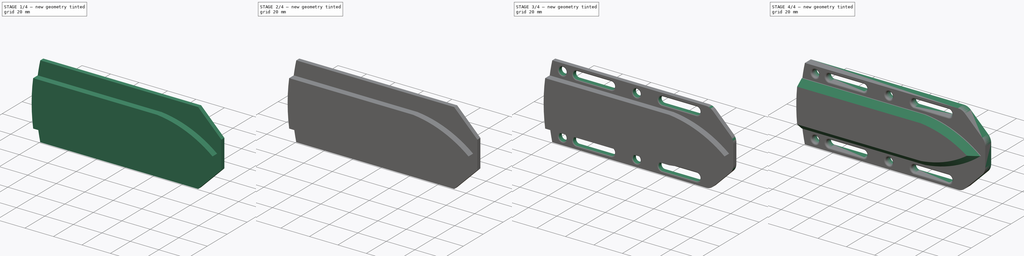
[diagram: build sequence overview — one tinted view per stage of 4, left to right]
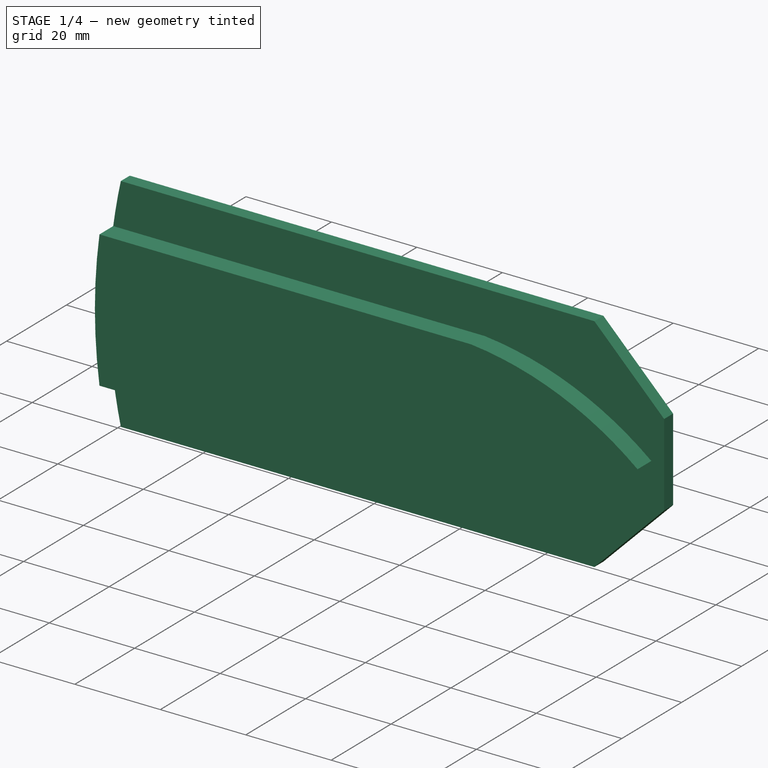
[diagram: stage 1 of 4 — iso view after this stage's code; geometry added in this stage tinted green]
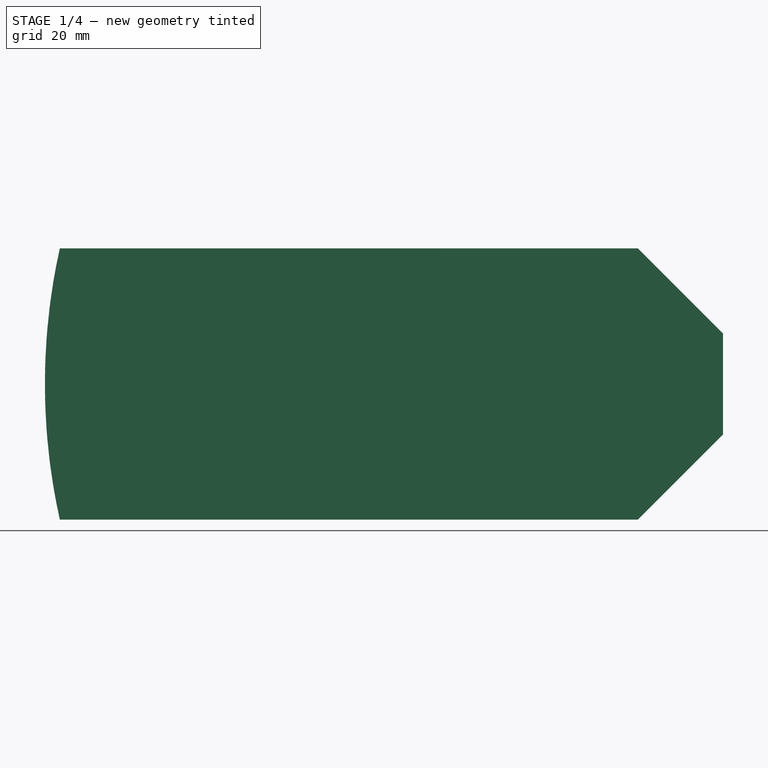
[diagram: stage 1 of 4 — front view after this stage's code; geometry added in this stage tinted green]
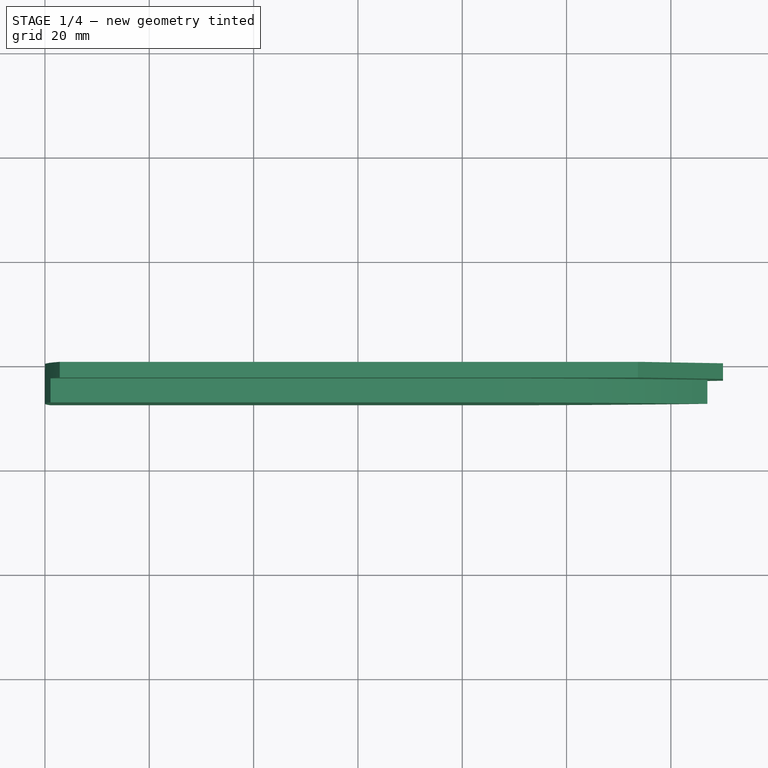
[diagram: stage 1 of 4 — top view after this stage's code; geometry added in this stage tinted green]
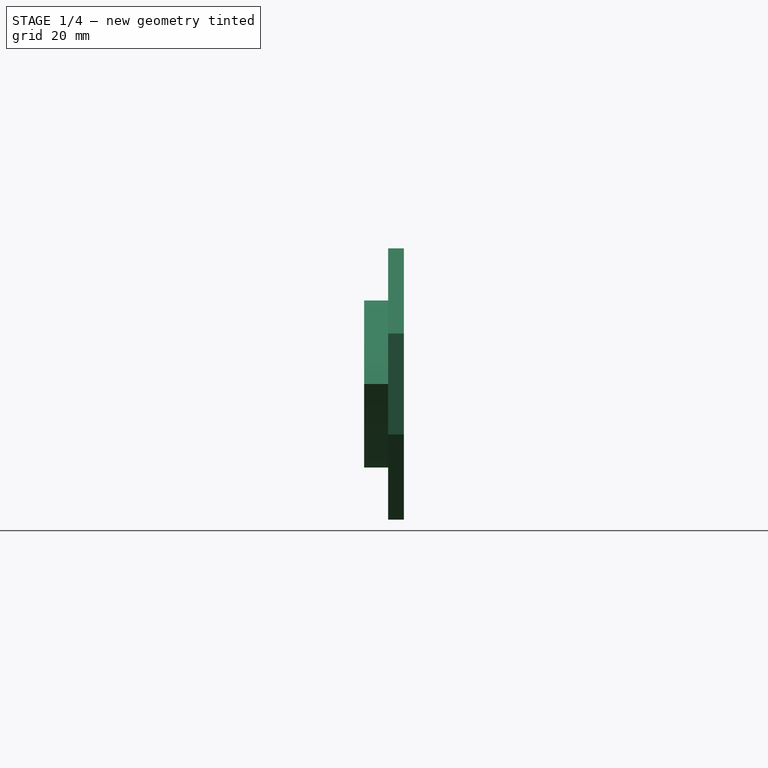
[diagram: stage 1 of 4 — right view after this stage's code; geometry added in this stage tinted green]
FCSTD DOCUMENT  (FreeCAD 1.0R39109 (Git))
Label: Рома морпех фаска2
License: All rights reserved
LicenseURL: https://en.wikipedia.org/wiki/All_rights_reserved
objects: Sketcher::SketchObject×5, PartDesign::Pocket×3, PartDesign::Pad×2, PartDesign::Fillet×2, PartDesign::Chamfer×1, PartDesign::Mirrored×1, PartDesign::Body×1
note: 37 computed .brp shape members not serialized (recipe doc carries the construction recipe); baked Part::Feature solids carry a one-line shape summary decoded from their .brp

FEATURE [Sketcher::SketchObject] Sketch
  ArcFitTolerance = 1e-06
  AttachmentSupport = -> [XZ_Plane]
  FullyConstrained = false
  MakeInternals = false
  MapMode = 5
  Placement = pos=(0,0,0) rot=(1,0,0;1.5708rad)
  sketch-geometry (6):
    g0: LineSegment StartX=2.85052 StartY=-26 StartZ=0 EndX=113.678 EndY=-26 EndZ=0
    g1: LineSegment StartX=130 StartY=-9.67799 StartZ=0 EndX=130 EndY=9.67799 EndZ=0
    g2: LineSegment StartX=113.678 StartY=26 StartZ=0 EndX=2.85052 EndY=26 EndZ=0
    g3: LineSegment StartX=130 StartY=-9.67799 StartZ=0 EndX=113.678 EndY=-26 EndZ=0
    g4: LineSegment StartX=130 StartY=9.67799 StartZ=0 EndX=113.678 EndY=26 EndZ=0
    g5: ArcOfCircle CenterX=120 CenterY=0 CenterZ=0 NormalX=0 NormalY=0 NormalZ=1 AngleXU=0 Radius=120 StartAngle=2.92319 EndAngle=3.35999
  constraints (14):
    c: Horizontal(g0)
    c: Angle(g-1,g3) = 0.785398
    c: Coincident(g0,g3)
    c: Coincident(g1,g3)
    c: DistanceX(g-1,g1) = 130
    c: Symmetric(g1,g1,g-1)
    c: Symmetric(g2,g0,g-1)
    c: Coincident(g4,g2)
    c: Coincident(g4,g1)
    c: PointOnObject(g-1,g5)
    c: Radius(g5) = 120
    c: PointOnObject(g5,g-1)
    c: Coincident(g2,g5)
    c: Coincident(g0,g5)
FEATURE [PartDesign::Pad] Pad  label="зовн контур"
  Direction = (0,-1,2e-16)
  Length = 3
  Length2 = 10
  Placement = pos=(0,0,0) rot=(1,0,0;1.5708rad)
  Profile = -> Sketch
  ReferenceAxis = -> Sketch [N_Axis]
  Refine = true
  Suppressed = false
  Type = 0
FEATURE [Sketcher::SketchObject] Sketch001
  ArcFitTolerance = 1e-06
  AttachmentSupport = -> [Pad]
  ExternalGeometry = -> [Pad]
  FullyConstrained = false
  MakeInternals = false
  MapMode = 5
  Placement = pos=(0,-3,0) rot=(1,0,0;1.5708rad)
  sketch-geometry (5):
    g0: LineSegment StartX=1.07145 StartY=-16 StartZ=0 EndX=88 EndY=-16 EndZ=0
    g1: LineSegment StartX=88 StartY=16 StartZ=0 EndX=1.07145 EndY=16 EndZ=0
    g2: ArcOfCircle CenterX=80.7873 CenterY=-57.1123 CenterZ=0 NormalX=0 NormalY=0 NormalZ=1 AngleXU=0 Radius=73.4672 StartAngle=0.890498 EndAngle=1.47246
    g3: ArcOfCircle CenterX=80.8783 CenterY=56.8905 CenterZ=0 NormalX=0 NormalY=0 NormalZ=1 AngleXU=0 Radius=73.2376 StartAngle=4.80978 EndAngle=5.39363
    g4: ArcOfCircle CenterX=119.999 CenterY=6.10595e-11 CenterZ=0 NormalX=0 NormalY=0 NormalZ=1 AngleXU=0 Radius=119.999 StartAngle=3.00786 EndAngle=3.27533
  constraints (13):
    c: Horizontal(g0)
    c: Horizontal(g1)
    c: Symmetric(g2,g3,g-1)
    c: Coincident(g1,g2)
    c: DistanceY(g0,g1) = 32
    c: DistanceX(g-1,g2) = 127
    c: PointOnObject(g2,g-1)
    c: Coincident(g3,g2)
    c: Coincident(g3,g0)
    c: Coincident(g4,g1)
    c: Coincident(g0,g4)
    c: PointOnObject(g0,g-3)
    c: Distance(g1,g-2) = 88
FEATURE [PartDesign::Pad] Pad001  label="виступ для леза"
  BaseFeature = -> Pad
  Direction = (0,-1,2e-16)
  Length = 4.6
  Length2 = 10
  Placement = pos=(0,0,0) rot=(1,0,0;1.5708rad)
  Profile = -> Sketch001
  ReferenceAxis = -> Sketch001 [N_Axis]
  Refine = true
  Suppressed = false
  Type = 0
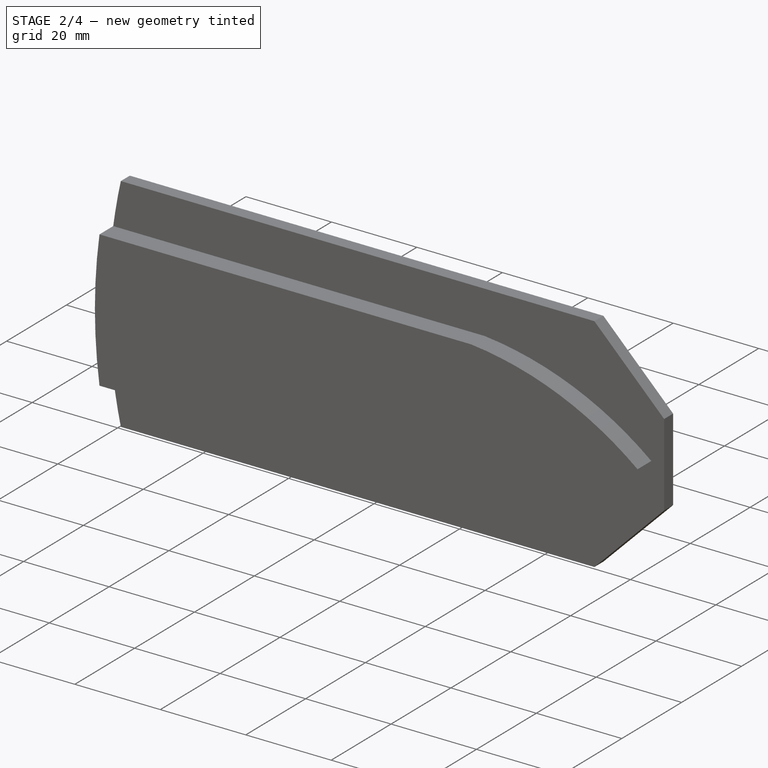
[diagram: stage 2 of 4 — iso view after this stage's code; geometry added in this stage tinted green]
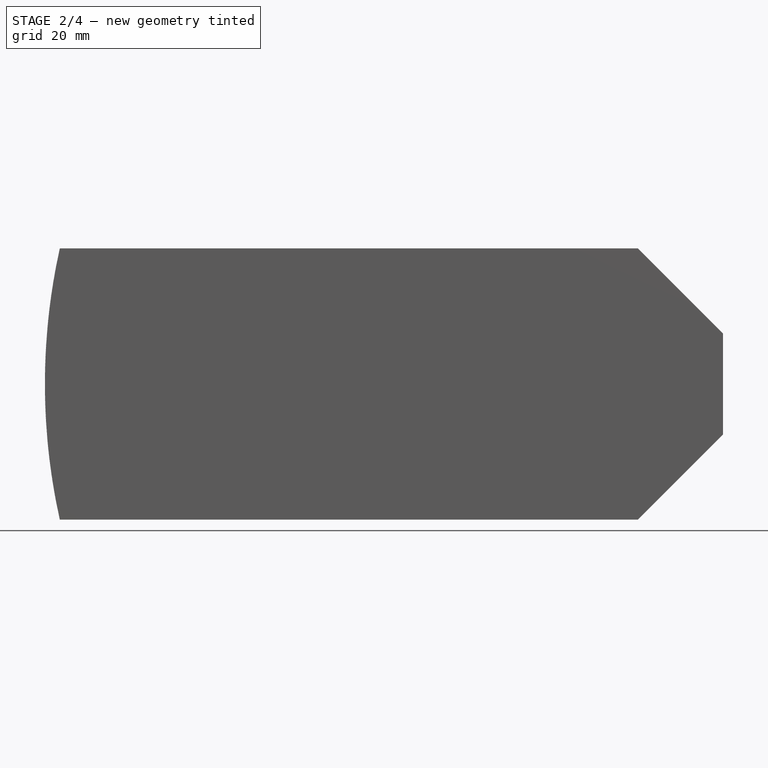
[diagram: stage 2 of 4 — front view after this stage's code; geometry added in this stage tinted green]
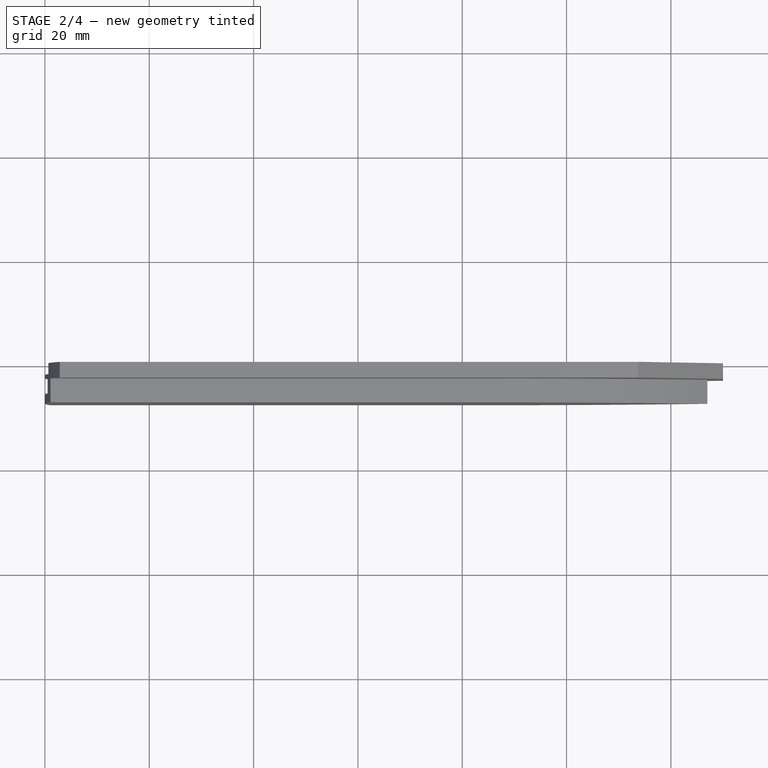
[diagram: stage 2 of 4 — top view after this stage's code; geometry added in this stage tinted green]
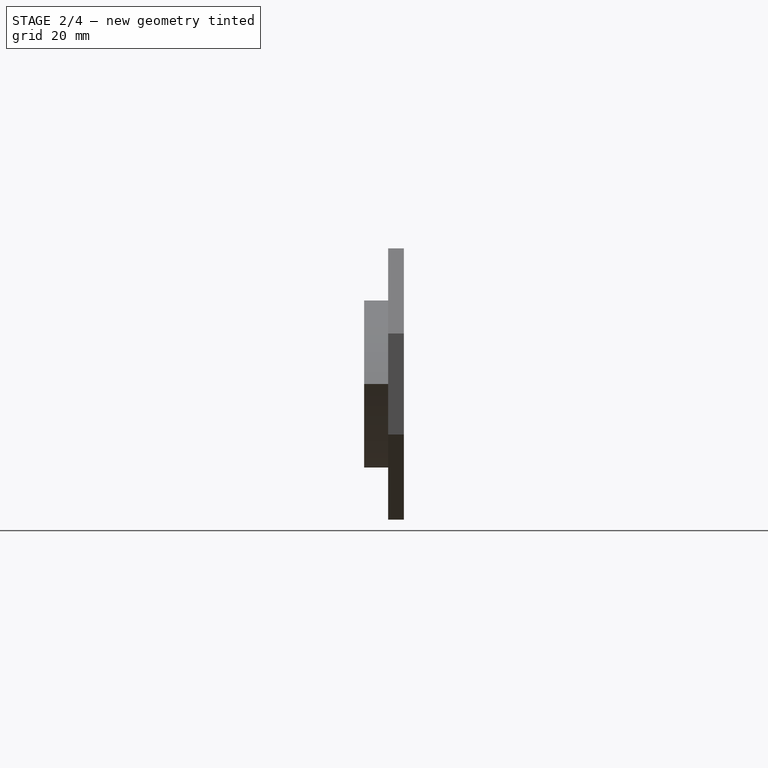
[diagram: stage 2 of 4 — right view after this stage's code; geometry added in this stage tinted green]
FEATURE [Sketcher::SketchObject] Sketch002
  ArcFitTolerance = 1e-06
  AttachmentSupport = -> [Pad001]
  ExternalGeometry = -> [Pad001]
  FullyConstrained = false
  MakeInternals = false
  MapMode = 5
  Placement = pos=(0,0,0) rot=(-1,0,0;1.5708rad)
  sketch-geometry (5):
    g0: LineSegment StartX=0.652817 StartY=-12.5 StartZ=0 EndX=85 EndY=-12.5 EndZ=0
    g1: LineSegment StartX=85 StartY=12.5 StartZ=0 EndX=0.652817 EndY=12.5 EndZ=0
    g2: ArcOfCircle CenterX=82.6679 CenterY=-65.2128 CenterZ=0 NormalX=0 NormalY=0 NormalZ=1 AngleXU=0 Radius=77.7478 StartAngle=0.995027 EndAngle=1.5408
    g3: ArcOfCircle CenterX=82.6679 CenterY=65.2128 CenterZ=0 NormalX=0 NormalY=0 NormalZ=1 AngleXU=0 Radius=77.7478 StartAngle=4.74239 EndAngle=5.28816
    g4: ArcOfCircle CenterX=120 CenterY=1.93393e-11 CenterZ=0 NormalX=0 NormalY=0 NormalZ=1 AngleXU=0 Radius=120 StartAngle=3.03724 EndAngle=3.24595
  constraints (9):
    c: Horizontal(g0)
    c: Horizontal(g1)
    c: DistanceX(g-1,g2) = 85
    c: Coincident(g1,g2)
    c: PointOnObject(g0,g3)
    c: PointOnObject(g4,g1)
    c: PointOnObject(g1,g-3)
    c: PointOnObject(g4,g0)
    c: PointOnObject(g0,g-3)
FEATURE [PartDesign::Pocket] Pocket  label="заглибл для леза"
  BaseFeature = -> Pad001
  Direction = (0,-1,-2e-16)
  Length = 2.1
  Length2 = 5
  Placement = pos=(0,0,0) rot=(1,0,0;1.5708rad)
  Profile = -> Sketch002
  ReferenceAxis = -> Sketch002 [N_Axis]
  Refine = true
  Suppressed = false
  Type = 0
FEATURE [Sketcher::SketchObject] Sketch003
  ArcFitTolerance = 1e-06
  AttachmentSupport = -> [YZ_Plane]
  ExternalGeometry = -> [Pocket]
  FullyConstrained = true
  MakeInternals = false
  MapMode = 5
  Placement = pos=(0,0,0) rot=(0.57735,0.57735,0.57735;2.0944rad)
  sketch-geometry (4):
    g0: LineSegment StartX=-5.8 StartY=11 StartZ=0 EndX=-5.8 EndY=-11 EndZ=0
    g1: LineSegment StartX=-5.8 StartY=-11 StartZ=0 EndX=-2.7 EndY=-11 EndZ=0
    g2: LineSegment StartX=-2.7 StartY=-11 StartZ=0 EndX=-2.7 EndY=11 EndZ=0
    g3: LineSegment StartX=-2.7 StartY=11 StartZ=0 EndX=-5.8 EndY=11 EndZ=0
  constraints (11):
    c: Coincident(g0,g1)
    c: Coincident(g1,g2)
    c: Coincident(g2,g3)
    c: Coincident(g3,g0)
    c: Vertical(g2)
    c: Horizontal(g1)
    c: Horizontal(g3)
    c: Symmetric(g0,g0,g-1)
    c: Distance(g1,g-3) = 0.6
    c: DistanceX(g1,g1) = 3.1
    c: DistanceY(g0,g0) = 22
FEATURE [PartDesign::Pocket] Pocket001  label="для магніта"
  BaseFeature = -> Pocket
  Direction = (-1,0,0)
  Length = 15
  Length2 = 5
  Placement = pos=(0,0,0) rot=(1,0,0;1.5708rad)
  Profile = -> Sketch003
  ReferenceAxis = -> Sketch003 [N_Axis]
  Refine = true
  Reversed = true
  Suppressed = false
  Type = 0
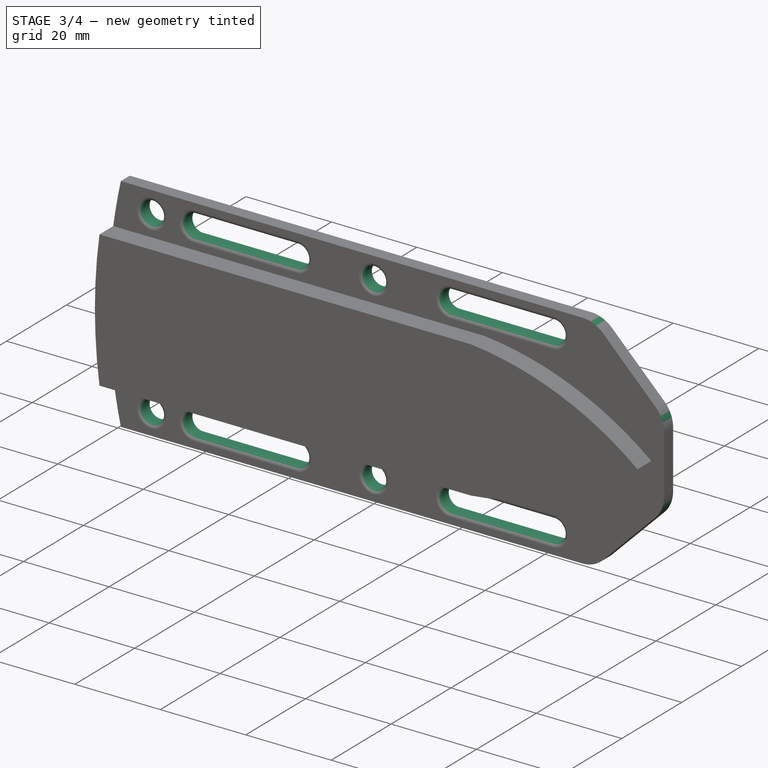
[diagram: stage 3 of 4 — iso view after this stage's code; geometry added in this stage tinted green]
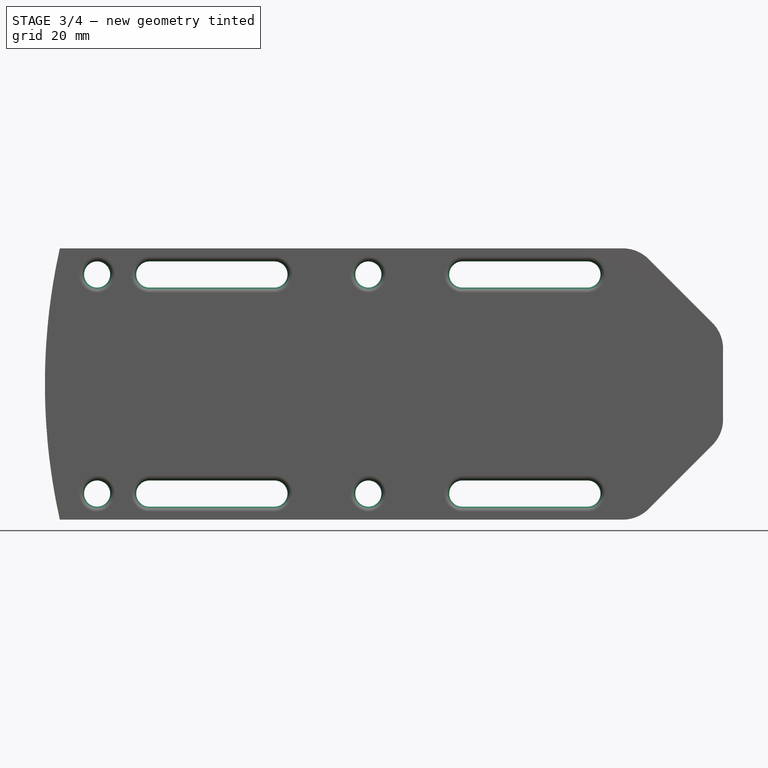
[diagram: stage 3 of 4 — front view after this stage's code; geometry added in this stage tinted green]
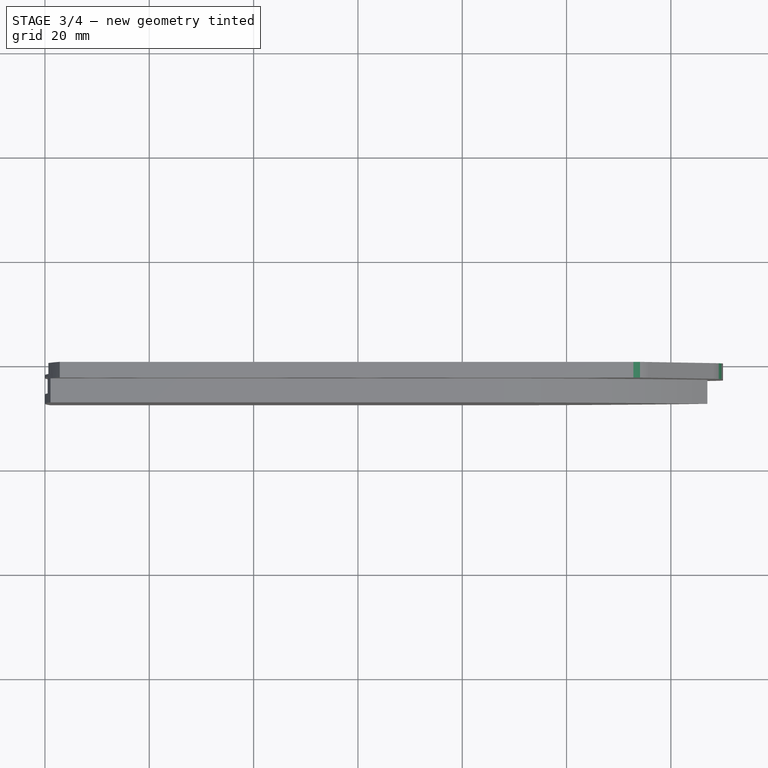
[diagram: stage 3 of 4 — top view after this stage's code; geometry added in this stage tinted green]
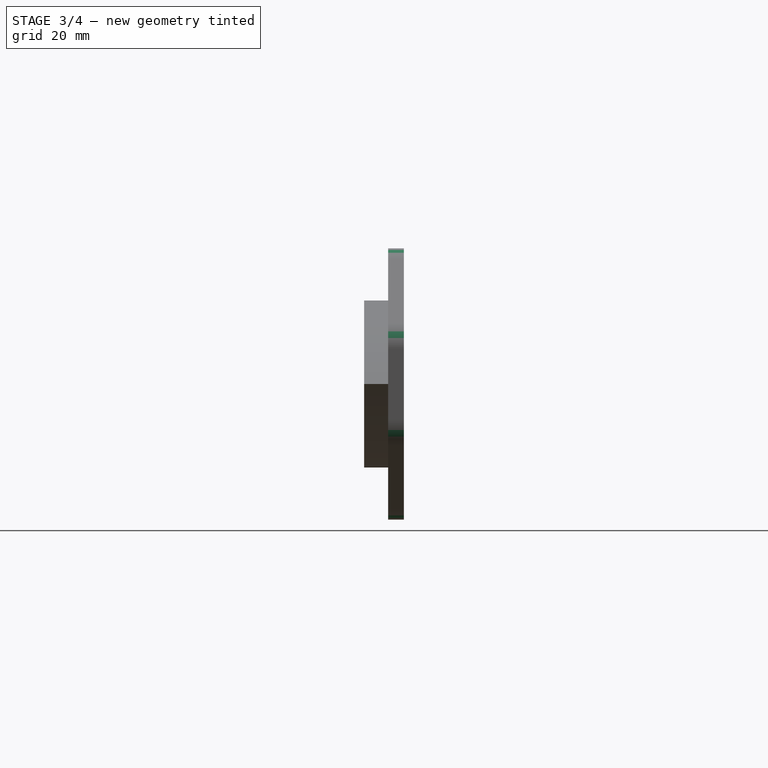
[diagram: stage 3 of 4 — right view after this stage's code; geometry added in this stage tinted green]
FEATURE [Sketcher::SketchObject] Sketch004
  ArcFitTolerance = 1e-06
  AttachmentSupport = -> [Pocket001]
  FullyConstrained = false
  MakeInternals = false
  MapMode = 5
  Placement = pos=(0,-3,0) rot=(1,0,0;1.5708rad)
  sketch-geometry (20):
    g0: ArcOfCircle CenterX=20 CenterY=21 CenterZ=0 NormalX=0 NormalY=0 NormalZ=1 AngleXU=0 Radius=2.5 StartAngle=1.5708 EndAngle=4.71239
    g1: ArcOfCircle CenterX=44 CenterY=21 CenterZ=0 NormalX=0 NormalY=0 NormalZ=1 AngleXU=0 Radius=2.5 StartAngle=4.71239 EndAngle=7.85398
    g2: LineSegment StartX=20 StartY=23.5 StartZ=0 EndX=44 EndY=23.5 EndZ=0
    g3: LineSegment StartX=20 StartY=18.5 StartZ=0 EndX=44 EndY=18.5 EndZ=0
    g4: ArcOfCircle CenterX=80 CenterY=21 CenterZ=0 NormalX=0 NormalY=0 NormalZ=1 AngleXU=0 Radius=2.5 StartAngle=1.5708 EndAngle=4.71239
    g5: ArcOfCircle CenterX=104 CenterY=21 CenterZ=0 NormalX=0 NormalY=0 NormalZ=1 AngleXU=0 Radius=2.5 StartAngle=4.71239 EndAngle=7.85398
    g6: LineSegment StartX=80 StartY=23.5 StartZ=0 EndX=104 EndY=23.5 EndZ=0
    g7: LineSegment StartX=80 StartY=18.5 StartZ=0 EndX=104 EndY=18.5 EndZ=0
    g8: Circle CenterX=10 CenterY=21 CenterZ=0 NormalX=0 NormalY=0 NormalZ=1 AngleXU=0 Radius=2.5
    g9: Circle CenterX=62 CenterY=21 CenterZ=0 NormalX=0 NormalY=0 NormalZ=1 AngleXU=0 Radius=2.5
    g10: ArcOfCircle CenterX=20 CenterY=-21 CenterZ=0 NormalX=0 NormalY=0 NormalZ=1 AngleXU=0 Radius=2.5 StartAngle=1.5708 EndAngle=4.71239
    g11: ArcOfCircle CenterX=44 CenterY=-21 CenterZ=0 NormalX=0 NormalY=0 NormalZ=1 AngleXU=0 Radius=2.5 StartAngle=4.71239 EndAngle=7.85398
    g12: LineSegment StartX=20 StartY=-23.5 StartZ=0 EndX=44 EndY=-23.5 EndZ=0
    g13: LineSegment StartX=20 StartY=-18.5 StartZ=0 EndX=44 EndY=-18.5 EndZ=0
    g14: ArcOfCircle CenterX=80 CenterY=-21 CenterZ=0 NormalX=0 NormalY=0 NormalZ=1 AngleXU=0 Radius=2.5 StartAngle=1.5708 EndAngle=4.71239
    g15: ArcOfCircle CenterX=104 CenterY=-21 CenterZ=0 NormalX=0 NormalY=0 NormalZ=1 AngleXU=0 Radius=2.5 StartAngle=4.71239 EndAngle=7.85398
    g16: LineSegment StartX=80 StartY=-23.5 StartZ=0 EndX=104 EndY=-23.5 EndZ=0
    g17: LineSegment StartX=80 StartY=-18.5 StartZ=0 EndX=104 EndY=-18.5 EndZ=0
    g18: Circle CenterX=10 CenterY=-21 CenterZ=0 NormalX=0 NormalY=0 NormalZ=1 AngleXU=0 Radius=2.5
    g19: Circle CenterX=62 CenterY=-21 CenterZ=0 NormalX=0 NormalY=0 NormalZ=1 AngleXU=0 Radius=2.5
  constraints (36):
    c: Tangent(g0,g2) = 1.5708
    c: Tangent(g0,g3) = -1.5708
    c: Tangent(g1,g2) = 1.5708
    c: Tangent(g1,g3) = -1.5708
    c: Equal(g0,g1)
    c: Horizontal(g3)
    c: Distance(g0,g1) = 24
    c: Radius(g0) = 2.5
    c: Tangent(g4,g6) = 1.5708
    c: Tangent(g4,g7) = -1.5708
    c: Tangent(g5,g6) = 1.5708
    c: Tangent(g5,g7) = -1.5708
    c: Equal(g4,g5)
    c: Horizontal(g7)
    c: Distance(g4,g5) = 24
    c: Radius(g4) = 2.5
    c: Diameter(g8) = 5
    c: Diameter(g9) = 5
    c: Tangent(g10,g12) = -1.5708
    c: Tangent(g10,g13) = 1.5708
    c: Tangent(g11,g12) = -1.5708
    c: Tangent(g11,g13) = 1.5708
    c: Equal(g10,g11)
    c: Horizontal(g13)
    c: Distance(g10,g11) = 24
    c: Radius(g10) = 2.5
    c: Tangent(g14,g16) = -1.5708
    c: Tangent(g14,g17) = 1.5708
    c: Tangent(g15,g16) = -1.5708
    c: Tangent(g15,g17) = 1.5708
    c: Equal(g14,g15)
    c: Horizontal(g17)
    c: Distance(g14,g15) = 24
    c: Radius(g14) = 2.5
    c: Diameter(g18) = 5
    c: Diameter(g19) = 5
FEATURE [PartDesign::Pocket] Pocket002
  BaseFeature = -> Pocket001
  Direction = (0,1,-2e-16)
  Length = 5
  Length2 = 5
  Placement = pos=(0,0,0) rot=(1,0,0;1.5708rad)
  Profile = -> Sketch004
  ReferenceAxis = -> Sketch004 [N_Axis]
  Refine = true
  Suppressed = false
  Type = 1
FEATURE [PartDesign::Fillet] Fillet
  Base = -> Pocket002 [Edge97,Edge98,Edge19,Edge2]
  BaseFeature = -> Pocket002
  Placement = pos=(0,0,0) rot=(1,0,0;1.5708rad)
  Radius = 7
  Refine = true
  SupportTransform = false
  Suppressed = false
  UseAllEdges = false
FEATURE [PartDesign::Fillet] Fillet001
  Base = -> Fillet [Edge69,Edge70,Edge79,Edge80,Edge64,Edge65,Edge74,Edge75]
  BaseFeature = -> Fillet
  Placement = pos=(0,0,0) rot=(1,0,0;1.5708rad)
  Radius = 1
  Refine = true
  SupportTransform = false
  Suppressed = false
  UseAllEdges = false
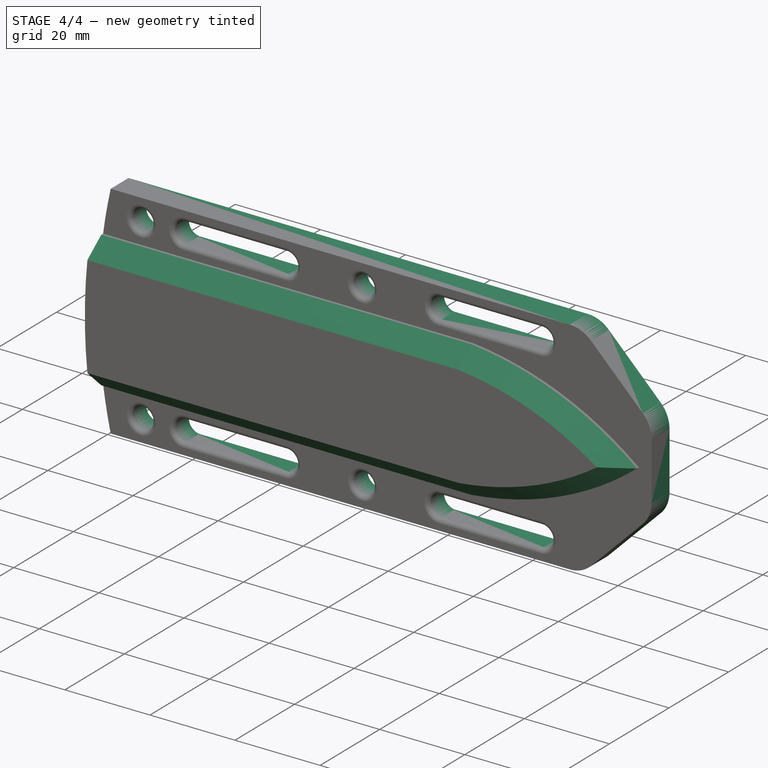
[diagram: stage 4 of 4 — iso view after this stage's code; geometry added in this stage tinted green]
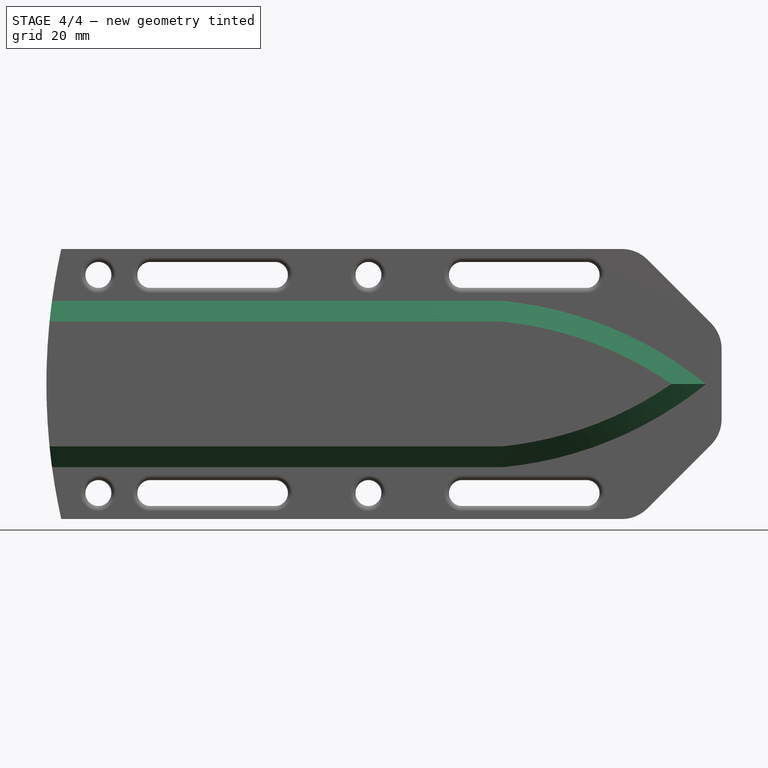
[diagram: stage 4 of 4 — front view after this stage's code; geometry added in this stage tinted green]
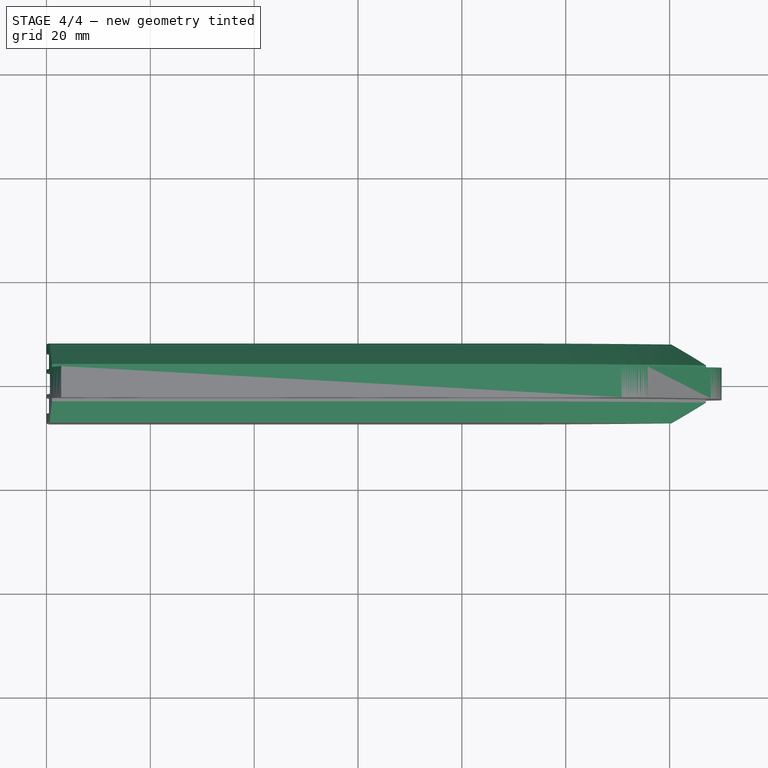
[diagram: stage 4 of 4 — top view after this stage's code; geometry added in this stage tinted green]
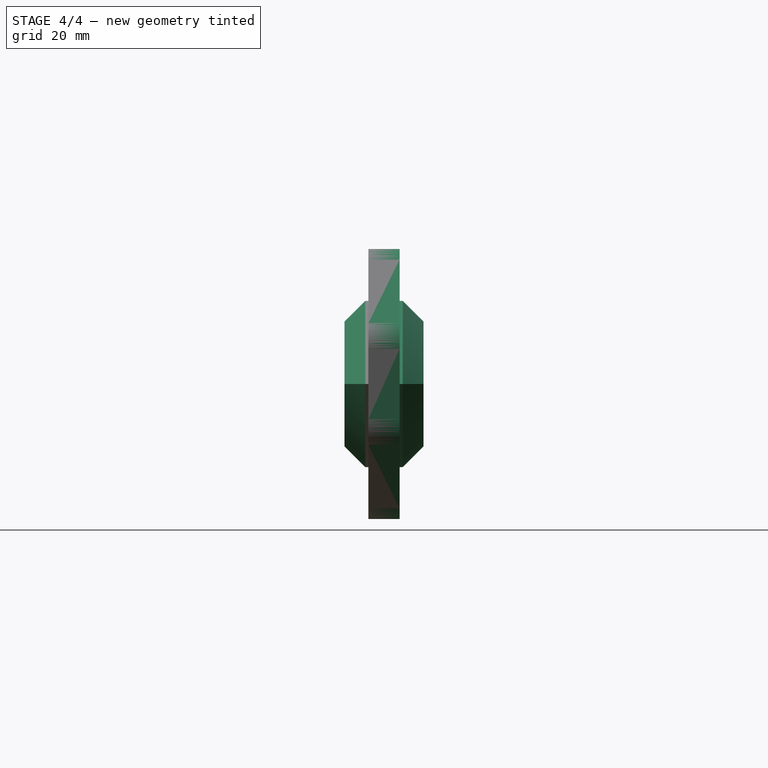
[diagram: stage 4 of 4 — right view after this stage's code; geometry added in this stage tinted green]
FEATURE [PartDesign::Chamfer] Chamfer
  Angle = 45
  Base = -> Fillet001 [Edge67,Edge63]
  BaseFeature = -> Fillet001
  ChamferType = 0
  FlipDirection = false
  Placement = pos=(0,0,0) rot=(1,0,0;1.5708rad)
  Refine = true
  Size = 4
  Size2 = 1
  SupportTransform = false
  Suppressed = false
  UseAllEdges = false
FEATURE [PartDesign::Mirrored] Mirrored
  BaseFeature = -> Chamfer
  MirrorPlane = -> XZ_Plane
  Placement = pos=(0,0,0) rot=(1,0,0;1.5708rad)
  Refine = true
  Suppressed = false
  TransformMode = 1
FEATURE [PartDesign::Body] Body  label="Тіло"
  AllowCompound = false
  Group = -> [Sketch,Pad,Sketch001,Pad001,Sketch002,Pocket,Sketch003,Pocket001,Sketch004,Pocket002,Fillet,Fillet001,Chamfer,Mirrored]
  Origin = -> Origin
  Tip = -> Mirrored
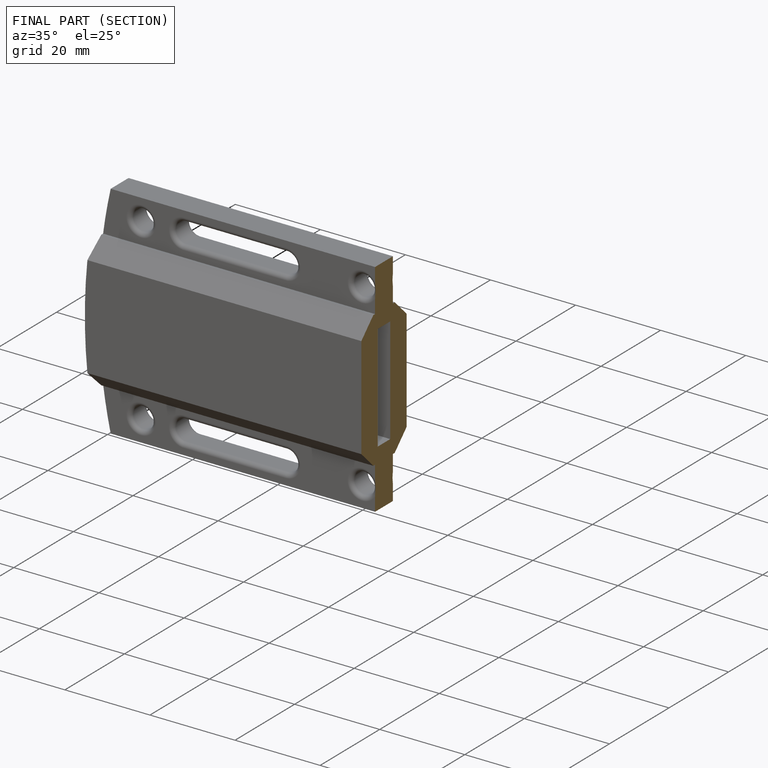
[diagram: finished part — half-section view (interior)]
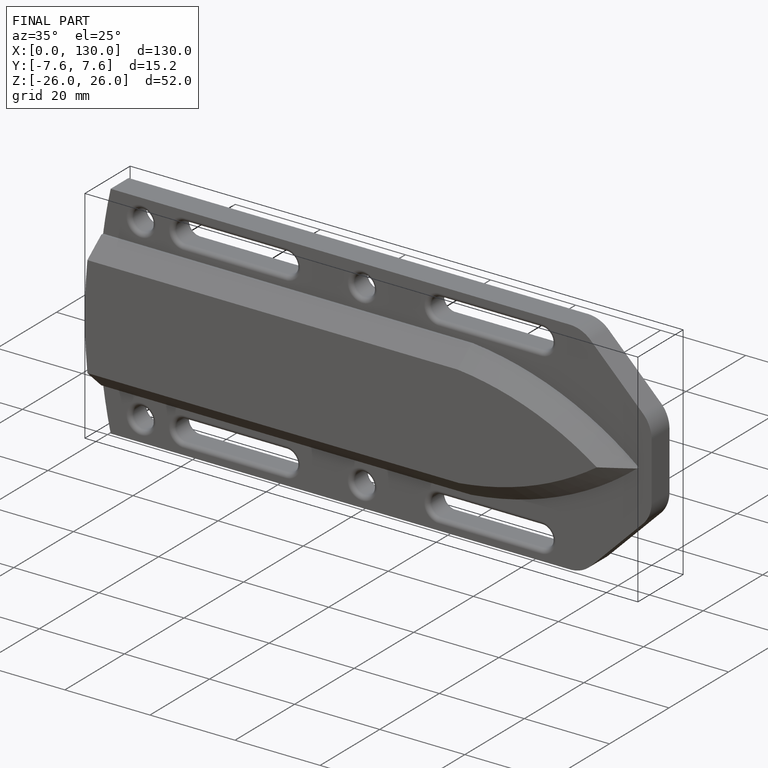
[diagram: finished part — iso view with bounding-box wireframe]
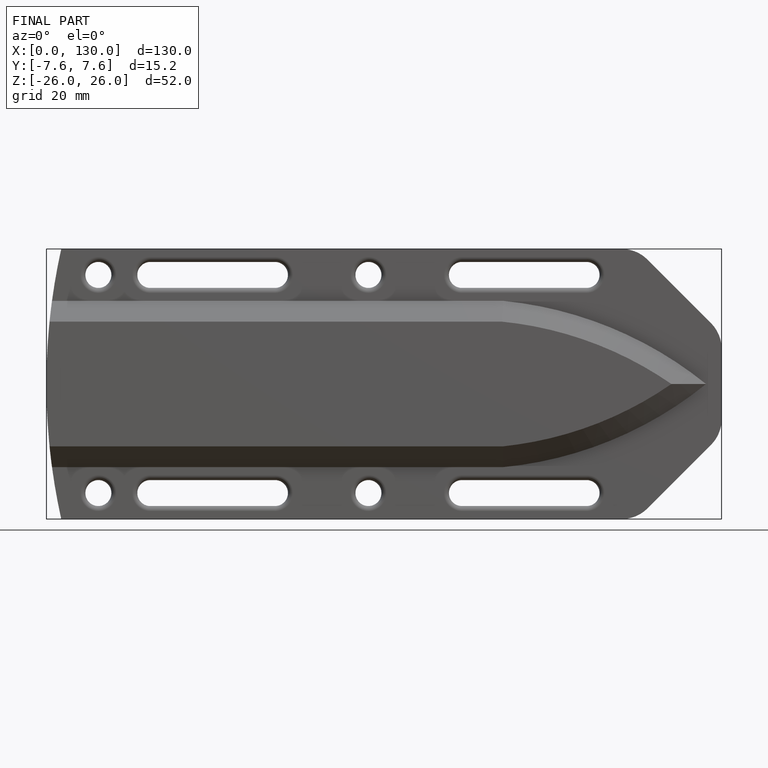
[diagram: finished part — front view with bounding-box wireframe]
